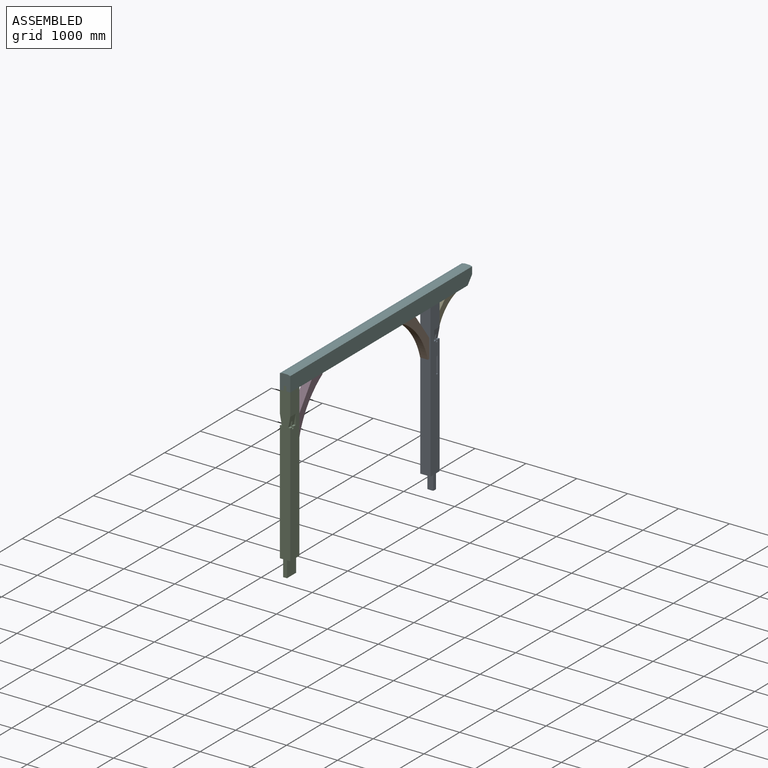
[diagram: assembled view]
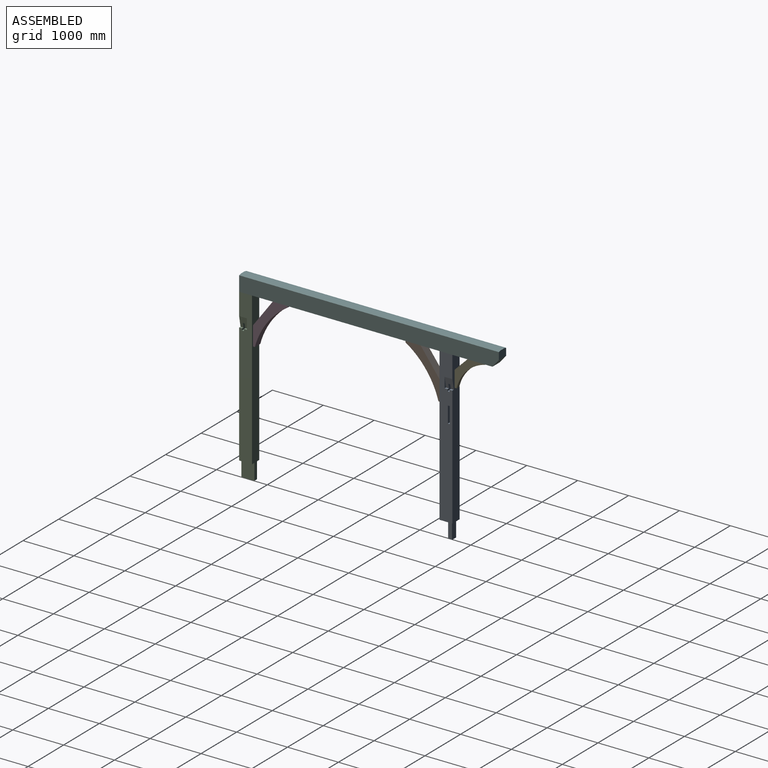
[diagram: assembled view, second angle]
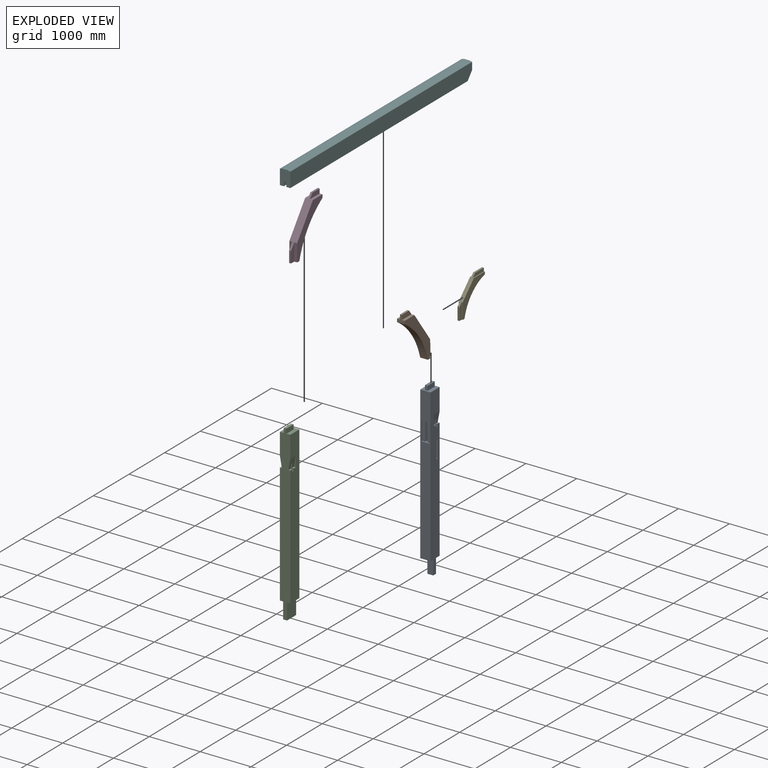
[diagram: exploded view]
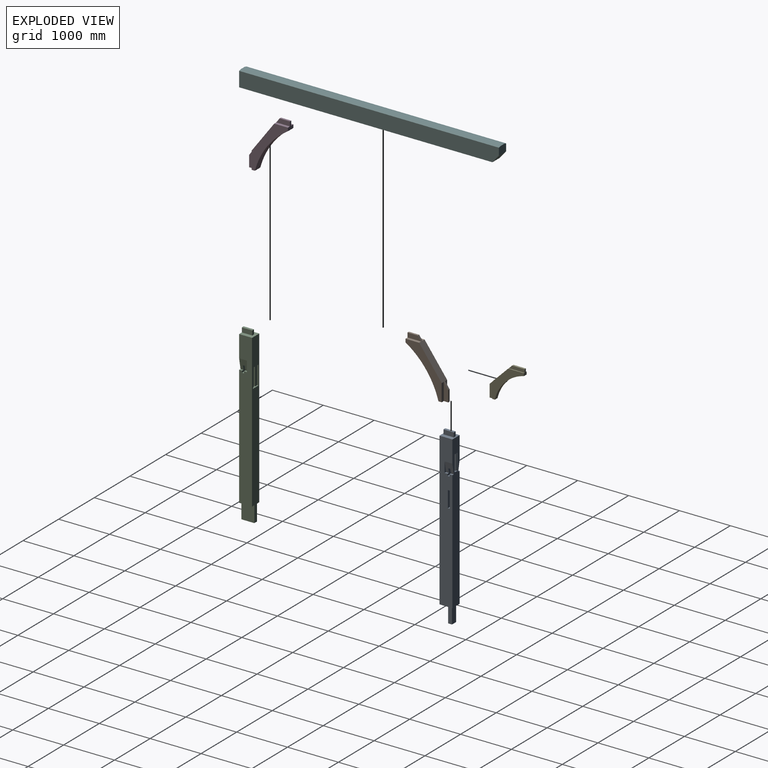
[diagram: exploded view, second angle]
ASSEMBLY  parts=6 mates=5
PART A: 56 faces, bbox 203.2x254x3403.6 mm
  f0: plane 2997.2x254mm, normal (-1,0,0), area 716625.7mm2, adj f3,f7,f12,f13,f14,f17,f28,f29
  f1: plane 2997.2x254mm, normal (1,0,0), area 716635.3mm2, adj f3,f7,f10,f11,f14,f17,f26,f27
  f2: plane 203.2x50.8mm, normal (0,0,1), area 10322.6mm2, adj f15,f16,f44,f45
  f3: plane 2997.2x203.2mm, normal (0,1,0), area 576820.8mm2, adj f0,f1,f11,f13,f14,f17,f26,f28
  f4: plane 308.41x63.5mm, normal (-1,0,0), area 18374.2mm2, adj f6,f31,f32,f38,f39,f40
  f5: plane 308.41x63.5mm, normal (1,0,0), area 18374.2mm2, adj f6,f31,f32,f38,f39,f40
  f6: plane 63.5x38.1mm, normal (0,0,-1), area 2419.3mm2, adj f4,f5,f39,f40
  f7: plane 2997.2x203.2mm, normal (0,-1,0), area 551837.6mm2, adj f0,f1,f14,f17,f18,f19,f35,f37
  f8: plane 375.29x88.9mm, normal (-1,0,0), area 33362.8mm2, adj f18,f19,f20,f36
  f9: plane 375.29x88.9mm, normal (1,0,0), area 33362.8mm2, adj f18,f19,f20,f34
  f10: plane 57.15x38.1mm, normal (0,0,1), area 2177.4mm2, adj f1,f11,f27,f30
  f11: plane 203.2x152.4mm, normal (0.98,0,-0.18), area 28061.2mm2, adj f1,f3,f10,f26,f27,f30,f31,f32
  f12: plane 57.15x38.1mm, normal (0,0,1), area 2177.4mm2, adj f0,f13,f29,f30
  f13: plane 203.2x152.4mm, normal (-0.98,0,-0.18), area 28061.2mm2, adj f0,f3,f12,f28,f29,f30,f31,f32
  f14: plane 254x203.2mm, normal (0,0,-1), area 42903.1mm2, adj f0,f1,f3,f7,f21,f22,f23,f24
  f15: plane 203.2x88.9mm, normal (1,0,0), area 18064.5mm2, adj f2,f17,f44,f45
  f16: plane 203.2x88.9mm, normal (-1,0,0), area 18064.5mm2, adj f2,f17,f44,f45
  f17: plane 254x203.2mm, normal (0,0,1), area 41290.2mm2, adj f0,f1,f3,f7,f15,f16,f44,f45
  f18: plane 152.4x114.3mm, normal (0,0,1), area 7258mm2, adj f7,f8,f9,f20,f34,f35,f36,f37
  f19: plane 152.4x114.3mm, normal (0,0,-1), area 7258mm2, adj f7,f8,f9,f20,f34,f35,f36,f37
  f20: plane 375.29x38.1mm, normal (0,-1,0), area 14298.4mm2, adj f8,f9,f18,f19
  f21: plane 317.5x114.3mm, normal (0,1,0), area 36290.2mm2, adj f14,f22,f24,f25
  f22: plane 317.5x76.2mm, normal (1,0,0), area 24193.5mm2, adj f14,f21,f23,f25
  f23: plane 317.5x114.3mm, normal (0,-1,0), area 36290.2mm2, adj f14,f22,f24,f25
  f24: plane 317.5x76.2mm, normal (-1,0,0), area 24193.5mm2, adj f14,f21,f23,f25
  f25: plane 114.3x76.2mm, normal (0,0,-1), area 8709.7mm2, adj f21,f22,f23,f24
  f26: plane 57.15x38.1mm, normal (0,0,1), area 2177.4mm2, adj f1,f3,f11,f31
  f27: plane 203.2x38.1mm, normal (0,1,0), area 3871mm2, adj f1,f10,f11
  f28: plane 57.15x38.1mm, normal (0,0,1), area 2177.4mm2, adj f0,f3,f13,f31
  f29: plane 203.2x38.1mm, normal (0,1,0), area 3871mm2, adj f0,f12,f13
  f30: plane 203.2x127mm, normal (0,1,0), area 20514.1mm2, adj f0,f1,f10,f11,f12,f13,f32,f33
  f31: plane 203.2x127mm, normal (0,-1,0), area 18094.7mm2, adj f0,f1,f4,f5,f11,f13,f26,f28
  f32: plane 160.34x38.1mm, normal (0,0,-1), area 5383.1mm2, adj f4,f5,f11,f13,f30,f31,f39
  f33: plane 203.2x38.1mm, normal (0,0,1), area 7741.9mm2, adj f0,f1,f30,f31
  f34: plane 375.29x57.15mm, normal (0,-1,0), area 21447.5mm2, adj f9,f18,f19,f35
  f35: plane 375.29x25.4mm, normal (1,0,0), area 9532.2mm2, adj f7,f18,f19,f34
  f36: plane 375.29x57.15mm, normal (0,-1,0), area 21447.5mm2, adj f8,f18,f19,f37
  f37: plane 375.29x25.4mm, normal (-1,0,0), area 9532.2mm2, adj f7,f18,f19,f36
  f38: plane 76.2x57.15mm, normal (0,0,1), area 2661.3mm2, adj f3,f4,f5,f31,f40,f41,f43
  f39: plane 244.91x38.1mm, normal (0,1,0), area 9330.9mm2, adj f4,f5,f6,f32
  f40: plane 321.11x76.2mm, normal (0,1,0), area 12718mm2, adj f4,f5,f6,f38,f41,f42,f43
  f41: plane 321.11x12.7mm, normal (1,0,0), area 4078.1mm2, adj f3,f38,f40,f42
  f42: plane 76.2x12.7mm, normal (0,0,-1), area 967.7mm2, adj f3,f40,f41,f43
  f43: plane 321.11x12.7mm, normal (-1,0,0), area 4078.1mm2, adj f3,f38,f40,f42
  f44: plane 88.9x50.8mm, normal (0,-1,0), area 4516.1mm2, adj f2,f15,f16,f17
  f45: plane 88.9x50.8mm, normal (0,1,0), area 4516.1mm2, adj f2,f15,f16,f17
  f46: plane 88.9x38.1mm, normal (0,0,-1), area 3387.1mm2, adj f1,f47,f49,f50
  f47: plane 321.11x88.9mm, normal (0,1,0), area 28546.4mm2, adj f1,f46,f48,f50
  f48: plane 88.9x38.1mm, normal (0,0,1), area 3387.1mm2, adj f1,f47,f49,f50
  f49: plane 321.11x88.9mm, normal (0,-1,0), area 28546.4mm2, adj f1,f46,f48,f50
  f50: plane 321.11x38.1mm, normal (1,0,0), area 12234.2mm2, adj f46,f47,f48,f49
  f51: plane 88.9x38.1mm, normal (0,0,-1), area 3387.1mm2, adj f0,f52,f54,f55
  f52: plane 321.36x88.9mm, normal (0,-1,0), area 28569mm2, adj f0,f51,f53,f55
  f53: plane 88.9x38.1mm, normal (0,0,1), area 3387.1mm2, adj f0,f52,f54,f55
  f54: plane 321.36x88.9mm, normal (0,1,0), area 28569mm2, adj f0,f51,f53,f55
  f55: plane 321.36x38.1mm, normal (-1,0,0), area 12243.8mm2, adj f51,f52,f53,f54
PART B: 16 faces, bbox 254x152.4x1302.9 mm
  f0: plane 216.2x160.15mm, normal (0.6,0,0.8), area 15376.6mm2, adj f2,f4,f9,f15
  f1: plane 274.02x202.97mm, normal (0.8,0,-0.6), area 19488.3mm2, adj f2,f6,f9,f12
  f2: plane 1004.35x152.4mm, normal (1,0,0), area 123346.6mm2, adj f0,f1,f3,f7,f8,f9,f10,f11
  f3: plane 216.2x160.15mm, normal (0.6,0,0.8), area 15376.6mm2, adj f2,f4,f8,f14
  f4: plane 152.4x122.46mm, normal (-0.8,0,0.6), area 13064.5mm2, adj f0,f3,f5,f8,f9,f13,f14,f15
  f5: cylinder r=1511.75mm len=1089.71mm, axis (0,1,0), area 169894.6mm2, adj f4,f6,f8,f9
  f6: plane 152.4x122.46mm, normal (-0.6,0,-0.8), area 13064.5mm2, adj f1,f5,f7,f8,f9,f10,f11,f12
  f7: plane 274.02x202.97mm, normal (0.8,0,-0.6), area 19488.3mm2, adj f2,f6,f8,f11
  f8: plane 1178.53x254mm, normal (0,-1,0), area 177976.1mm2, adj f2,f3,f4,f5,f6,f7
  f9: plane 1178.53x254mm, normal (0,1,0), area 177976.1mm2, adj f0,f1,f2,f4,f5,f6
  f10: plane 177.58x131.54mm, normal (0.8,0,-0.6), area 8419.6mm2, adj f2,f6,f11,f12
  f11: plane 326.93x202.97mm, normal (0,-1,0), area 24980.5mm2, adj f2,f6,f7,f10
  f12: plane 326.93x202.97mm, normal (0,1,0), area 24980.5mm2, adj f1,f2,f6,f10
  f13: plane 163.29x120.95mm, normal (0.6,0,0.8), area 7742.1mm2, adj f2,f4,f14,f15
  f14: plane 231.59x216.2mm, normal (0,-1,0), area 20992.1mm2, adj f2,f3,f4,f13
  f15: plane 231.59x216.2mm, normal (0,1,0), area 20992.1mm2, adj f0,f2,f4,f13
PART C: 35 faces, bbox 203.2x254x3403.6 mm
  f0: plane 2997.2x254mm, normal (1,0,0), area 728869.5mm2, adj f2,f3,f7,f8,f12,f15,f26,f27
  f1: plane 2997.2x254mm, normal (-1,0,0), area 728869.5mm2, adj f4,f5,f7,f8,f11,f15,f28,f29
  f2: plane 203.2x152.4mm, normal (0.98,0,-0.18), area 28061.2mm2, adj f0,f3,f7,f26,f27,f32,f33,f34
  f3: plane 57.15x38.1mm, normal (0,0,1), area 2177.4mm2, adj f0,f2,f27,f33
  f4: plane 203.2x152.4mm, normal (-0.98,0,-0.18), area 28061.2mm2, adj f1,f5,f7,f28,f29,f32,f33,f34
  f5: plane 57.15x38.1mm, normal (0,0,1), area 2177.4mm2, adj f1,f4,f29,f33
  f6: plane 203.2x50.8mm, normal (0,0,1), area 10322.6mm2, adj f7,f13,f14,f30
  f7: plane 3403.6x203.2mm, normal (0,1,0), area 629998.7mm2, adj f0,f1,f2,f4,f6,f11,f12,f13
  f8: plane 3314.7x203.2mm, normal (0,-1,0), area 576450.3mm2, adj f0,f1,f11,f12,f15,f16,f17,f19
  f9: plane 372.53x88.9mm, normal (-1,0,0), area 33118.3mm2, adj f16,f17,f18,f24
  f10: plane 372.53x88.9mm, normal (1,0,0), area 33118.3mm2, adj f16,f17,f18,f22
  f11: plane 254x63.5mm, normal (0,0,-1), area 16129mm2, adj f1,f7,f8,f19
  f12: plane 254x63.5mm, normal (0,0,-1), area 16129mm2, adj f0,f7,f8,f20
  f13: plane 203.2x88.9mm, normal (1,0,0), area 18064.5mm2, adj f6,f7,f15,f30
  f14: plane 203.2x88.9mm, normal (-1,0,0), area 18064.5mm2, adj f6,f7,f15,f30
  f15: plane 254x203.2mm, normal (0,0,1), area 41290.2mm2, adj f0,f1,f7,f8,f13,f14,f30
  f16: plane 152.4x114.3mm, normal (0,0,1), area 7258.1mm2, adj f8,f9,f10,f18,f22,f23,f24,f25
  f17: plane 152.4x114.3mm, normal (0,0,-1), area 7258.1mm2, adj f8,f9,f10,f18,f22,f23,f24,f25
  f18: plane 372.53x38.1mm, normal (0,-1,0), area 14193.6mm2, adj f9,f10,f16,f17
  f19: plane 317.5x254mm, normal (-1,0,0), area 80645mm2, adj f7,f8,f11,f21
  f20: plane 317.5x254mm, normal (1,0,0), area 80645mm2, adj f7,f8,f12,f21
  f21: plane 254x76.2mm, normal (0,0,-1), area 19354.8mm2, adj f7,f8,f19,f20
  f22: plane 372.53x54.32mm, normal (0,-1,0), area 20236.5mm2, adj f10,f16,f17,f23
  f23: plane 372.53x25.4mm, normal (1,0,0), area 9462.4mm2, adj f8,f16,f17,f22
  f24: plane 372.53x59.98mm, normal (0,-1,0), area 22344.1mm2, adj f9,f16,f17,f25
  f25: plane 372.53x25.4mm, normal (-1,0,0), area 9462.4mm2, adj f8,f16,f17,f24
  f26: plane 57.15x38.1mm, normal (0,0,1), area 2177.4mm2, adj f0,f2,f7,f34
  f27: plane 203.2x38.1mm, normal (0,1,0), area 3871mm2, adj f0,f2,f3
  f28: plane 57.15x38.1mm, normal (0,0,1), area 2177.4mm2, adj f1,f4,f7,f34
  f29: plane 203.2x38.1mm, normal (0,1,0), area 3871mm2, adj f1,f4,f5
  f30: plane 88.9x50.8mm, normal (0,-1,0), area 4516.1mm2, adj f6,f13,f14,f15
  f31: plane 203.2x38.1mm, normal (0,0,1), area 7741.9mm2, adj f0,f1,f33,f34
  f32: plane 160.34x38.1mm, normal (0,0,-1), area 6108.9mm2, adj f2,f4,f33,f34
  f33: plane 203.2x127mm, normal (0,1,0), area 20514.1mm2, adj f0,f1,f2,f3,f4,f5,f31,f32
  f34: plane 203.2x127mm, normal (0,-1,0), area 20514.1mm2, adj f0,f1,f2,f4,f26,f28,f31,f32
PART D: same geometry as B
PART E: 16 faces, bbox 254x76.2x969.9 mm
  f0: plane 218.08x218.08mm, normal (0.71,0,-0.71), area 5875.2mm2, adj f3,f5,f9,f15
  f1: plane 218.08x218.08mm, normal (0.71,0,0.71), area 5875.2mm2, adj f5,f7,f9,f12
  f2: cylinder r=771.52mm len=808.22mm, axis (0,1,0), area 64820.2mm2, adj f3,f7,f8,f9
  f3: plane 80.82x80.82mm, normal (-0.71,0,-0.71), area 6290.3mm2, adj f0,f2,f4,f8,f9,f13,f14,f15
  f4: plane 218.08x218.08mm, normal (0.71,0,-0.71), area 5875.2mm2, adj f3,f5,f8,f14
  f5: plane 623.51x76.2mm, normal (1,0,0), area 40668.4mm2, adj f0,f1,f4,f6,f8,f9,f10,f11
  f6: plane 218.08x218.08mm, normal (0.71,0,0.71), area 5875.2mm2, adj f5,f7,f8,f11
  f7: plane 80.82x80.82mm, normal (-0.71,0,0.71), area 6290.3mm2, adj f1,f2,f6,f8,f9,f10,f11,f12
  f8: plane 880.06x254mm, normal (0,-1,0), area 112126.2mm2, adj f2,f3,f4,f5,f6,f7
  f9: plane 880.06x254mm, normal (0,1,0), area 112126.2mm2, adj f0,f1,f2,f3,f5,f7
  f10: plane 173.18x173.18mm, normal (0.71,0,0.71), area 9331.1mm2, adj f5,f7,f11,f12
  f11: plane 262.98x218.08mm, normal (0,-1,0), area 17567.9mm2, adj f5,f6,f7,f10
  f12: plane 262.98x218.08mm, normal (0,1,0), area 17567.9mm2, adj f1,f5,f7,f10
  f13: plane 173.18x173.18mm, normal (0.71,0,-0.71), area 9331.1mm2, adj f3,f5,f14,f15
  f14: plane 262.98x218.08mm, normal (0,-1,0), area 17567.9mm2, adj f3,f4,f5,f13
  f15: plane 262.98x218.08mm, normal (0,1,0), area 17567.9mm2, adj f0,f3,f5,f13
PART F: 45 faces, bbox 203.2x304.8x5105.4 mm
  f0: plane 63.5x38.1mm, normal (0,0,-1), area 2419.3mm2, adj f1,f2,f40,f41
  f1: plane 308.41x63.5mm, normal (1,0,0), area 19583.8mm2, adj f0,f39,f40,f41
  f2: plane 308.41x63.5mm, normal (-1,0,0), area 19583.8mm2, adj f0,f39,f40,f41
  f3: plane 4978.4x203.2mm, normal (0,-1,0), area 878591.8mm2, adj f10,f11,f12,f13,f14,f16,f17,f19
  f4: plane 288.93x88.9mm, normal (1,0,0), area 25685.4mm2, adj f13,f14,f15,f37
  f5: plane 288.93x88.9mm, normal (-1,0,0), area 25685.4mm2, adj f13,f14,f15,f35
  f6: plane 287.88x88.9mm, normal (-1,0,0), area 25592.9mm2, adj f16,f17,f18,f33
  f7: plane 287.88x88.9mm, normal (1,0,0), area 25592.9mm2, adj f16,f17,f18,f31
  f8: plane 203.2x152.4mm, normal (0,0,-1), area 30322.5mm2, adj f9,f11,f12,f28,f29,f30
  f9: plane 5105.4x101.6mm, normal (0,1,0), area 518708.6mm2, adj f8,f10,f29,f30
  f10: plane 304.8x203.2mm, normal (0,0,1), area 56774.1mm2, adj f3,f9,f11,f12,f19,f21,f22,f29
  f11: plane 5105.4x292.1mm, normal (1,0,0), area 1481609.9mm2, adj f3,f8,f10,f28,f29
  f12: plane 5105.4x292.1mm, normal (-1,0,0), area 1481609.9mm2, adj f3,f8,f10,f28,f30
  f13: plane 152.4x114.3mm, normal (0,0,-1), area 7258.1mm2, adj f3,f4,f5,f15,f35,f36,f37,f38
  f14: plane 152.4x114.3mm, normal (0,0,1), area 7258.1mm2, adj f3,f4,f5,f15,f35,f36,f37,f38
  f15: plane 288.93x38.1mm, normal (0,-1,0), area 11008mm2, adj f4,f5,f13,f14
  f16: plane 152.4x114.3mm, normal (0,0,1), area 7258.1mm2, adj f3,f6,f7,f18,f31,f32,f33,f34
  f17: plane 152.4x114.3mm, normal (0,0,-1), area 7258.1mm2, adj f3,f6,f7,f18,f31,f32,f33,f34
  f18: plane 287.88x38.1mm, normal (0,-1,0), area 10968.4mm2, adj f6,f7,f16,f17
  f19: plane 203.2x88.9mm, normal (1,0,0), area 18064.5mm2, adj f3,f10,f20,f22
  f20: plane 88.9x50.8mm, normal (0,0,1), area 4516.1mm2, adj f3,f19,f21,f22
  f21: plane 203.2x88.9mm, normal (-1,0,0), area 18064.5mm2, adj f3,f10,f20,f22
  f22: plane 203.2x50.8mm, normal (0,-1,0), area 10322.6mm2, adj f10,f19,f20,f21
  f23: plane 203.2x88.9mm, normal (1,0,0), area 18064.5mm2, adj f3,f24,f26,f27
  f24: plane 88.9x50.8mm, normal (0,0,1), area 4516.1mm2, adj f3,f23,f25,f27
  f25: plane 203.2x88.9mm, normal (-1,0,0), area 18064.5mm2, adj f3,f24,f26,f27
  f26: plane 88.9x50.8mm, normal (0,0,-1), area 4516.1mm2, adj f3,f23,f25,f27
  f27: plane 203.2x50.8mm, normal (0,-1,0), area 10322.6mm2, adj f23,f24,f25,f26
  f28: plane 203.2x152.4mm, normal (0,-0.64,-0.77), area 40310.9mm2, adj f3,f8,f11,f12
  f29: plane 5105.4x50.8mm, normal (0.24,0.97,0), area 267336.3mm2, adj f8,f9,f10,f11
  f30: plane 5105.4x50.8mm, normal (-0.24,0.97,0), area 267336.3mm2, adj f8,f9,f10,f12
  f31: plane 287.88x57.08mm, normal (0,-1,0), area 16432.5mm2, adj f7,f16,f17,f32
  f32: plane 287.88x25.4mm, normal (1,0,0), area 7312.2mm2, adj f3,f16,f17,f31
  f33: plane 287.88x57.22mm, normal (0,-1,0), area 16472.6mm2, adj f6,f16,f17,f34
  f34: plane 287.88x25.4mm, normal (-1,0,0), area 7312.2mm2, adj f3,f16,f17,f33
  f35: plane 288.93x57.15mm, normal (0,-1,0), area 16512.1mm2, adj f5,f13,f14,f36
  f36: plane 288.93x25.4mm, normal (-1,0,0), area 7338.7mm2, adj f3,f13,f14,f35
  f37: plane 288.93x57.15mm, normal (0,-1,0), area 16512.1mm2, adj f4,f13,f14,f38
  f38: plane 288.93x25.4mm, normal (1,0,0), area 7338.7mm2, adj f3,f13,f14,f37
  f39: plane 76.2x76.2mm, normal (0,0,1), area 3387.1mm2, adj f1,f2,f3,f40,f41,f42,f43
  f40: plane 308.41x38.1mm, normal (0,-1,0), area 11750.3mm2, adj f0,f1,f2,f39
  f41: plane 321.11x76.2mm, normal (0,-1,0), area 12718mm2, adj f0,f1,f2,f39,f42,f43,f44
  f42: plane 321.11x12.7mm, normal (1,0,0), area 4078.1mm2, adj f3,f39,f41,f44
  f43: plane 321.11x12.7mm, normal (-1,0,0), area 4078.1mm2, adj f3,f39,f41,f44
  f44: plane 76.2x12.7mm, normal (0,0,-1), area 967.7mm2, adj f3,f41,f42,f43
PLACE A t=(-499,-265.55,33.83)mm fixed
PLACE B rot(axis=(0.3,-0.3,0.91),95.6deg) t=(-499,-662.68,1101.66)mm
PLACE C rot(axis=(0,0,-1),180deg) t=(-499,-4202.55,33.83)mm
PLACE D rot(axis=(-0.3,-0.3,-0.91),95.6deg) t=(-499,-3804.89,1101.66)mm
PLACE E rot(axis=(-0.36,-0.36,-0.86),98.4deg) t=(-499,-2.95,1155.48)mm
PLACE F rot(axis=(1,0,0),90deg) t=(-499,-1776.85,1640.38)mm
MATE fastened D.f13 <-> F.f18  axis (0,0,1) through (-499,-3490.51,1602.28)mm
MATE fastened A.f2 <-> F.f27  axis (0,0,1) through (-499,-265.55,1576.88)mm
MATE fastened B.f13 <-> F.f15  axis (0,0,1) through (-499,-977.06,1602.28)mm
MATE fastened E.f10 <-> F.f40  axis (0,0,1) through (-499,348.6,1564.18)mm
MATE fastened C.f6 <-> F.f22  axis (0,0,1) through (-499,-4227.95,1576.88)mm
